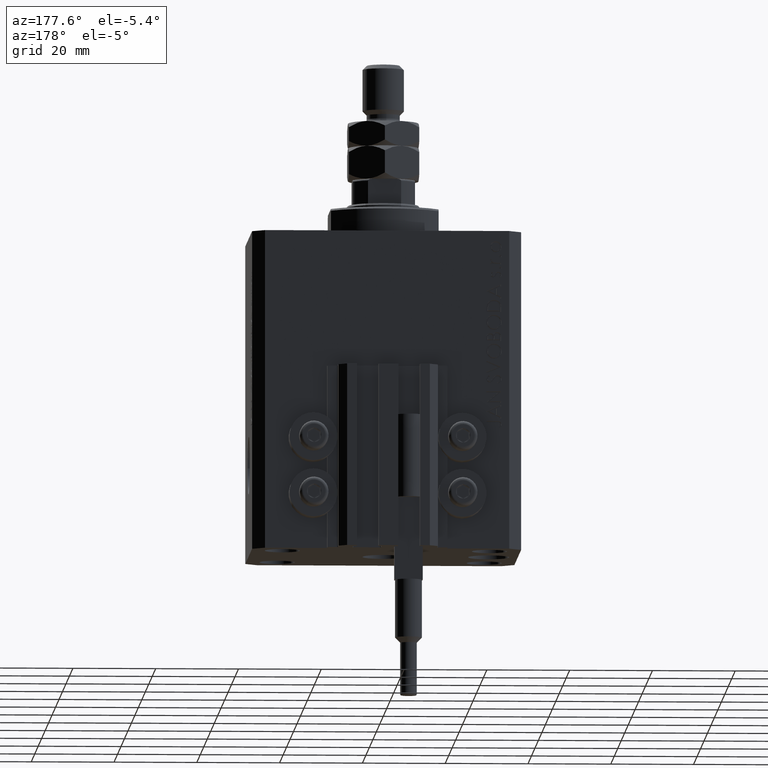
[diagram: clean part render]
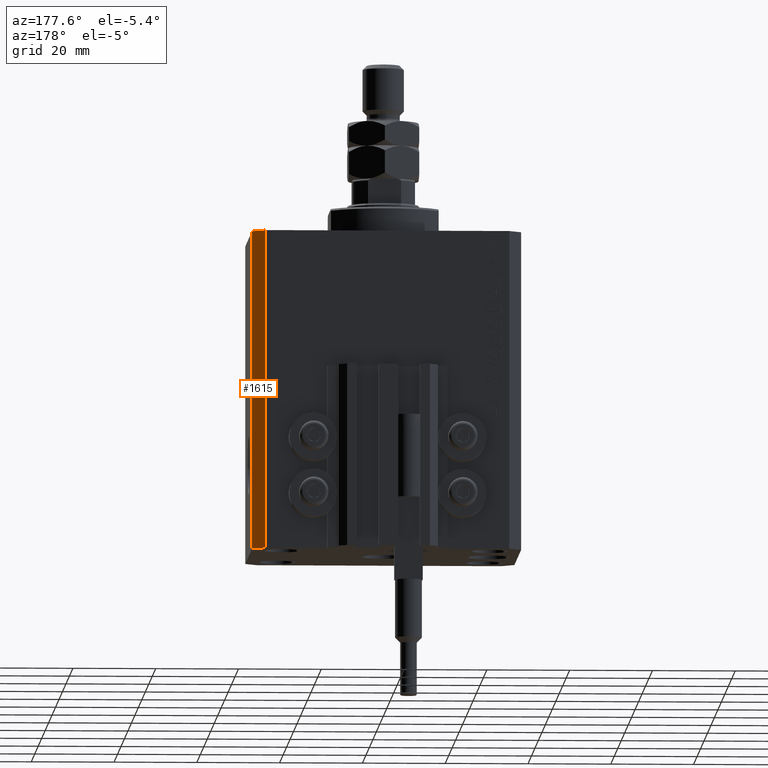
[diagram: same view with one face highlighted and labeled with its STEP entity id]
A machine part, auxiliary view. The second image highlights one B-rep face of the part: STEP entity #1615.
In plain terms, the highlighted planar face has unit normal (0.7071, 0.7071, 0).
Its self-contained STEP definition (entity closure, byte-faithful):
#1615 = ADVANCED_FACE ( 'NONE', ( #39916 ), #16727, .T. ) ;
#4872 = VECTOR ( 'NONE', #37550, 1000.000000000000000 ) ;
#5363 = VERTEX_POINT ( 'NONE', #44751 ) ;
#9598 = DIRECTION ( 'NONE',  ( -0.7071067811865344721, 0.7071067811865606734, 0.000000000000000000 ) ) ;
#11499 = VERTEX_POINT ( 'NONE', #16486 ) ;
#13143 = LINE ( 'NONE', #20421, #42719 ) ;
#14460 = CARTESIAN_POINT ( 'NONE',  ( 29.49999999999707967, 22.49999999999952038, -77.00000000000000000 ) ) ;
#15200 = VERTEX_POINT ( 'NONE', #38578 ) ;
#15829 = DIRECTION ( 'NONE',  ( -0.7071067811865344721, 0.7071067811865606734, 0.000000000000000000 ) ) ;
#16486 = CARTESIAN_POINT ( 'NONE',  ( 32.49999999999702993, 19.49999999999945999, -77.00000000000000000 ) ) ;
#16727 = PLANE ( 'NONE',  #31725 ) ;
#16749 = ORIENTED_EDGE ( 'NONE', *, *, #48765, .T. ) ;
#18381 = CARTESIAN_POINT ( 'NONE',  ( 32.49999999999702993, 19.49999999999945999, -77.00000000000000000 ) ) ;
#18992 = EDGE_CURVE ( 'NONE', #11499, #5363, #33516, .T. ) ;
#20421 = CARTESIAN_POINT ( 'NONE',  ( 32.49999999999702993, 19.49999999999945999, -77.00000000000000000 ) ) ;
#20999 = EDGE_CURVE ( 'NONE', #31336, #15200, #46197, .T. ) ;
#26672 = LINE ( 'NONE', #31190, #39484 ) ;
#28331 = CARTESIAN_POINT ( 'NONE',  ( 32.49999999999702993, 19.49999999999945999, -77.00000000000000000 ) ) ;
#28712 = ORIENTED_EDGE ( 'NONE', *, *, #20999, .T. ) ;
#30047 = EDGE_LOOP ( 'NONE', ( #45049, #33367, #16749, #28712 ) ) ;
#31190 = CARTESIAN_POINT ( 'NONE',  ( 32.49999999999702993, 19.49999999999945999, 0.000000000000000000 ) ) ;
#31336 = VERTEX_POINT ( 'NONE', #42432 ) ;
#31725 = AXIS2_PLACEMENT_3D ( 'NONE', #28331, #43706, #36131 ) ;
#33367 = ORIENTED_EDGE ( 'NONE', *, *, #18992, .F. ) ;
#33516 = LINE ( 'NONE', #18381, #4872 ) ;
#36131 = DIRECTION ( 'NONE',  ( -0.7071067811865344721, 0.7071067811865606734, 0.000000000000000000 ) ) ;
#36238 = VECTOR ( 'NONE', #45208, 1000.000000000000000 ) ;
#37550 = DIRECTION ( 'NONE',  ( 0.000000000000000000, 0.000000000000000000, 1.000000000000000000 ) ) ;
#38578 = CARTESIAN_POINT ( 'NONE',  ( 29.49999999999707967, 22.49999999999952038, 0.000000000000000000 ) ) ;
#39484 = VECTOR ( 'NONE', #15829, 1000.000000000000000 ) ;
#39916 = FACE_OUTER_BOUND ( 'NONE', #30047, .T. ) ;
#42432 = CARTESIAN_POINT ( 'NONE',  ( 29.49999999999707967, 22.49999999999952038, -77.00000000000000000 ) ) ;
#42719 = VECTOR ( 'NONE', #9598, 1000.000000000000000 ) ;
#43706 = DIRECTION ( 'NONE',  ( 0.7071067811865606734, 0.7071067811865344721, -0.000000000000000000 ) ) ;
#44751 = CARTESIAN_POINT ( 'NONE',  ( 32.49999999999702993, 19.49999999999945999, 0.000000000000000000 ) ) ;
#45049 = ORIENTED_EDGE ( 'NONE', *, *, #47758, .F. ) ;
#45208 = DIRECTION ( 'NONE',  ( 0.000000000000000000, 0.000000000000000000, 1.000000000000000000 ) ) ;
#46197 = LINE ( 'NONE', #14460, #36238 ) ;
#47758 = EDGE_CURVE ( 'NONE', #5363, #15200, #26672, .T. ) ;
#48765 = EDGE_CURVE ( 'NONE', #11499, #31336, #13143, .T. ) ;